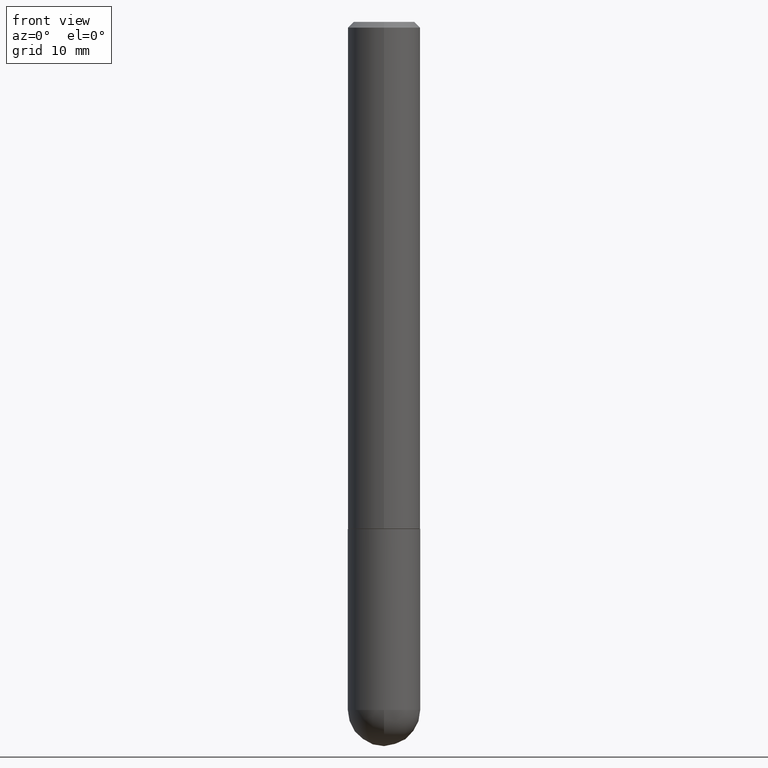
[diagram: clean part render]
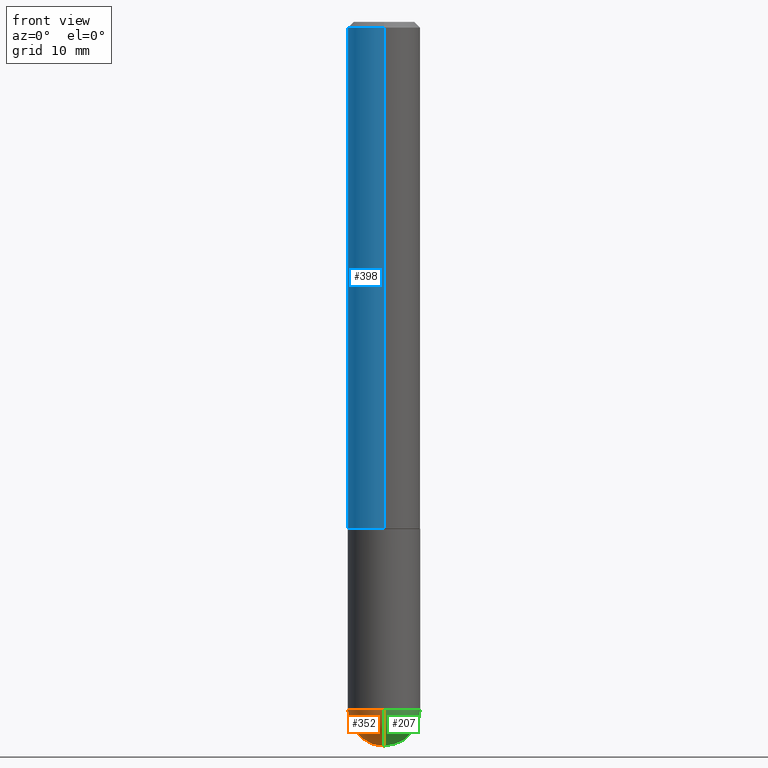
[diagram: same view with three faces highlighted in distinct colors, each labeled with its STEP entity id]
A machine part, front view with three faces highlighted in distinct colors.
Their STEP definitions:

[orange] entity #352 — the highlighted spherical surface has radius 3.175 mm.
#3 = CARTESIAN_POINT ( 'NONE',  ( 5.807988414689700538E-29, -8.292268179752471696E-15, -2.375000000000000000 ) ) ;
#7 = EDGE_CURVE ( 'NONE', #180, #252, #326, .T. ) ;
#16 = CARTESIAN_POINT ( 'NONE',  ( 5.787897026856327965E-29, -9.195231672753244292E-15, -2.500000000000000444 ) ) ;
#27 = SPHERICAL_SURFACE ( 'NONE', #355, 0.1250000000000001943 ) ;
#33 = EDGE_LOOP ( 'NONE', ( #56, #64, #270, #314 ) ) ;
#50 = CARTESIAN_POINT ( 'NONE',  ( 5.807988414689700538E-29, -8.292268179752471696E-15, -2.375000000000000000 ) ) ;
#56 = ORIENTED_EDGE ( 'NONE', *, *, #211, .F. ) ;
#60 = FACE_OUTER_BOUND ( 'NONE', #33, .T. ) ;
#62 = DIRECTION ( 'NONE',  ( -1.000000000000000000, 6.982962677686265922E-15, -4.883557194083112901E-29 ) ) ;
#63 = CIRCLE ( 'NONE', #76, 0.1250000000000001943 ) ;
#64 = ORIENTED_EDGE ( 'NONE', *, *, #167, .T. ) ;
#76 = AXIS2_PLACEMENT_3D ( 'NONE', #300, #116, #81 ) ;
#80 = DIRECTION ( 'NONE',  ( -1.000000000000000000, 7.105427357601001070E-15, -4.926315508542082329E-29 ) ) ;
#81 = DIRECTION ( 'NONE',  ( 6.982962677686265133E-15, 1.000000000000000000, 0.000000000000000000 ) ) ;
#104 = DIRECTION ( 'NONE',  ( 1.000000000000000000, -6.982962677686270655E-15, 0.000000000000000000 ) ) ;
#110 = CIRCLE ( 'NONE', #210, 0.1250000000000001943 ) ;
#116 = DIRECTION ( 'NONE',  ( 1.000000000000000000, -6.982962677686265922E-15, 4.883557194083112340E-29 ) ) ;
#132 = DIRECTION ( 'NONE',  ( -2.445468806185136597E-29, 3.491481338843145583E-15, 1.000000000000000000 ) ) ;
#139 = DIRECTION ( 'NONE',  ( 1.000000000000000000, -6.982962677686270655E-15, 0.000000000000000000 ) ) ;
#154 = DIRECTION ( 'NONE',  ( 6.982962677686265922E-15, 1.000000000000000000, -4.370956789862814839E-15 ) ) ;
#157 = VERTEX_POINT ( 'NONE', #254 ) ;
#167 = EDGE_CURVE ( 'NONE', #190, #157, #110, .T. ) ;
#172 = CARTESIAN_POINT ( 'NONE',  ( 8.728703347108403340E-16, 0.1249999999999915623, -2.375000000000000888 ) ) ;
#180 = VERTEX_POINT ( 'NONE', #172 ) ;
#184 = AXIS2_PLACEMENT_3D ( 'NONE', #3, #132, #104 ) ;
#190 = VERTEX_POINT ( 'NONE', #16 ) ;
#199 = CARTESIAN_POINT ( 'NONE',  ( 5.476868636775814291E-29, -8.766450547892521992E-15, -2.375000000000000000 ) ) ;
#200 = DIRECTION ( 'NONE',  ( -7.105427357601000281E-15, -1.000000000000000000, 0.000000000000000000 ) ) ;
#210 = AXIS2_PLACEMENT_3D ( 'NONE', #199, #80, #200 ) ;
#211 = EDGE_CURVE ( 'NONE', #190, #180, #63, .T. ) ;
#228 = EDGE_CURVE ( 'NONE', #252, #157, #281, .T. ) ;
#245 = AXIS2_PLACEMENT_3D ( 'NONE', #50, #267, #139 ) ;
#252 = VERTEX_POINT ( 'NONE', #269 ) ;
#254 = CARTESIAN_POINT ( 'NONE',  ( -8.881784197000694204E-16, -0.1250000000000086320, -2.374999999999999556 ) ) ;
#267 = DIRECTION ( 'NONE',  ( -2.445468806185136597E-29, 3.491481338843145583E-15, 1.000000000000000000 ) ) ;
#269 = CARTESIAN_POINT ( 'NONE',  ( -0.1250000000000000000, -6.313001841663864134E-15, -2.375000000000000000 ) ) ;
#270 = ORIENTED_EDGE ( 'NONE', *, *, #228, .F. ) ;
#273 = CARTESIAN_POINT ( 'NONE',  ( 5.476868636775814291E-29, -8.766450547892521992E-15, -2.375000000000000000 ) ) ;
#281 = CIRCLE ( 'NONE', #245, 0.1250000000000000000 ) ;
#300 = CARTESIAN_POINT ( 'NONE',  ( 5.476868636775814291E-29, -8.766450547892521992E-15, -2.375000000000000000 ) ) ;
#314 = ORIENTED_EDGE ( 'NONE', *, *, #7, .F. ) ;
#326 = CIRCLE ( 'NONE', #184, 0.1250000000000000000 ) ;
#352 = ADVANCED_FACE ( 'NONE', ( #60 ), #27, .T. ) ;
#355 = AXIS2_PLACEMENT_3D ( 'NONE', #273, #62, #154 ) ;

[blue] entity #398 — the highlighted cylindrical surface (edge-blend (fillet) strip) has radius 3.175 mm, axis along (-0, 0, 1).
#12 = EDGE_CURVE ( 'NONE', #319, #374, #354, .T. ) ;
#14 = AXIS2_PLACEMENT_3D ( 'NONE', #77, #150, #342 ) ;
#28 = CIRCLE ( 'NONE', #256, 0.1250000000000000000 ) ;
#32 = LINE ( 'NONE', #373, #272 ) ;
#35 = DIRECTION ( 'NONE',  ( -2.445706133332774021E-29, 3.491141472859906642E-15, 1.000000000000000000 ) ) ;
#38 = DIRECTION ( 'NONE',  ( -6.982962677686265133E-15, -1.000000000000000000, 4.370956789862812472E-15 ) ) ;
#42 = CYLINDRICAL_SURFACE ( 'NONE', #14, 0.1250000000000001110 ) ;
#47 = AXIS2_PLACEMENT_3D ( 'NONE', #224, #35, #38 ) ;
#66 = CARTESIAN_POINT ( 'NONE',  ( -8.728703347107841277E-16, -0.1250000000000001110, 4.363926841074887247E-16 ) ) ;
#77 = CARTESIAN_POINT ( 'NONE',  ( 0.000000000000000000, 0.000000000000000000, 0.000000000000000000 ) ) ;
#114 = DIRECTION ( 'NONE',  ( -6.982962677686265922E-15, -1.000000000000000000, 3.483106191921935554E-15 ) ) ;
#128 = ORIENTED_EDGE ( 'NONE', *, *, #12, .T. ) ;
#140 = FACE_OUTER_BOUND ( 'NONE', #369, .T. ) ;
#150 = DIRECTION ( 'NONE',  ( -2.445706133332774021E-29, 3.491141472859906642E-15, 1.000000000000000000 ) ) ;
#151 = ORIENTED_EDGE ( 'NONE', *, *, #372, .F. ) ;
#188 = DIRECTION ( 'NONE',  ( -2.445706133332773740E-29, 3.491141472859906642E-15, 1.000000000000000000 ) ) ;
#198 = EDGE_CURVE ( 'NONE', #321, #288, #28, .T. ) ;
#203 = CARTESIAN_POINT ( 'NONE',  ( -8.575622497214408537E-16, -0.1250000000000000555, -0.01999999999999959102 ) ) ;
#224 = CARTESIAN_POINT ( 'NONE',  ( 4.277540027199021844E-29, -6.106006436031975850E-15, -1.749000000000000110 ) ) ;
#239 = CARTESIAN_POINT ( 'NONE',  ( 4.891412266665553962E-31, -6.982282945719821124E-17, -0.02000000000000002470 ) ) ;
#242 = CARTESIAN_POINT ( 'NONE',  ( 8.881784197001479121E-16, 0.1249999999999941019, -1.749000000000000554 ) ) ;
#256 = AXIS2_PLACEMENT_3D ( 'NONE', #239, #364, #114 ) ;
#258 = VECTOR ( 'NONE', #188, 39.37007874015748143 ) ;
#259 = LINE ( 'NONE', #66, #258 ) ;
#272 = VECTOR ( 'NONE', #294, 39.37007874015748143 ) ;
#279 = ORIENTED_EDGE ( 'NONE', *, *, #198, .F. ) ;
#288 = VERTEX_POINT ( 'NONE', #203 ) ;
#294 = DIRECTION ( 'NONE',  ( -2.445706133332773740E-29, 3.491141472859906642E-15, 1.000000000000000000 ) ) ;
#319 = VERTEX_POINT ( 'NONE', #242 ) ;
#321 = VERTEX_POINT ( 'NONE', #379 ) ;
#342 = DIRECTION ( 'NONE',  ( -6.982962677686266711E-15, -1.000000000000000000, 3.491141472859906642E-15 ) ) ;
#350 = CARTESIAN_POINT ( 'NONE',  ( -8.728703347107421208E-16, -0.1250000000000063560, -1.748999999999999666 ) ) ;
#354 = CIRCLE ( 'NONE', #47, 0.1250000000000002498 ) ;
#364 = DIRECTION ( 'NONE',  ( -2.445706133332774021E-29, 3.491141472859906642E-15, 1.000000000000000000 ) ) ;
#369 = EDGE_LOOP ( 'NONE', ( #151, #128, #408, #279 ) ) ;
#372 = EDGE_CURVE ( 'NONE', #319, #321, #32, .T. ) ;
#373 = CARTESIAN_POINT ( 'NONE',  ( 8.881784197001260212E-16, 0.1250000000000001110, -4.363926841074887247E-16 ) ) ;
#374 = VERTEX_POINT ( 'NONE', #350 ) ;
#379 = CARTESIAN_POINT ( 'NONE',  ( 8.728703347107837333E-16, 0.1249999999999999306, -0.02000000000000046185 ) ) ;
#386 = EDGE_CURVE ( 'NONE', #374, #288, #259, .T. ) ;
#398 = ADVANCED_FACE ( 'NONE', ( #140 ), #42, .T. ) ;
#408 = ORIENTED_EDGE ( 'NONE', *, *, #386, .T. ) ;

[green] entity #207 — the highlighted spherical surface has radius 3.175 mm.
#16 = CARTESIAN_POINT ( 'NONE',  ( 5.787897026856327965E-29, -9.195231672753244292E-15, -2.500000000000000444 ) ) ;
#18 = DIRECTION ( 'NONE',  ( 1.000000000000000000, -6.982962677686270655E-15, 0.000000000000000000 ) ) ;
#63 = CIRCLE ( 'NONE', #76, 0.1250000000000001943 ) ;
#76 = AXIS2_PLACEMENT_3D ( 'NONE', #300, #116, #81 ) ;
#80 = DIRECTION ( 'NONE',  ( -1.000000000000000000, 7.105427357601001070E-15, -4.926315508542082329E-29 ) ) ;
#81 = DIRECTION ( 'NONE',  ( 6.982962677686265133E-15, 1.000000000000000000, 0.000000000000000000 ) ) ;
#96 = DIRECTION ( 'NONE',  ( -2.445468806185136597E-29, 3.491481338843145583E-15, 1.000000000000000000 ) ) ;
#110 = CIRCLE ( 'NONE', #210, 0.1250000000000001943 ) ;
#116 = DIRECTION ( 'NONE',  ( 1.000000000000000000, -6.982962677686265922E-15, 4.883557194083112340E-29 ) ) ;
#136 = DIRECTION ( 'NONE',  ( -1.000000000000000000, 6.982962677686265922E-15, -4.883557194083112901E-29 ) ) ;
#141 = SPHERICAL_SURFACE ( 'NONE', #315, 0.1250000000000001943 ) ;
#143 = CARTESIAN_POINT ( 'NONE',  ( 5.476868636775814291E-29, -8.766450547892521992E-15, -2.375000000000000000 ) ) ;
#145 = CIRCLE ( 'NONE', #202, 0.1250000000000000000 ) ;
#157 = VERTEX_POINT ( 'NONE', #254 ) ;
#167 = EDGE_CURVE ( 'NONE', #190, #157, #110, .T. ) ;
#172 = CARTESIAN_POINT ( 'NONE',  ( 8.728703347108403340E-16, 0.1249999999999915623, -2.375000000000000888 ) ) ;
#180 = VERTEX_POINT ( 'NONE', #172 ) ;
#190 = VERTEX_POINT ( 'NONE', #16 ) ;
#199 = CARTESIAN_POINT ( 'NONE',  ( 5.476868636775814291E-29, -8.766450547892521992E-15, -2.375000000000000000 ) ) ;
#200 = DIRECTION ( 'NONE',  ( -7.105427357601000281E-15, -1.000000000000000000, 0.000000000000000000 ) ) ;
#202 = AXIS2_PLACEMENT_3D ( 'NONE', #313, #96, #343 ) ;
#207 = ADVANCED_FACE ( 'NONE', ( #229 ), #141, .T. ) ;
#210 = AXIS2_PLACEMENT_3D ( 'NONE', #199, #80, #200 ) ;
#211 = EDGE_CURVE ( 'NONE', #190, #180, #63, .T. ) ;
#217 = CIRCLE ( 'NONE', #265, 0.1250000000000000000 ) ;
#218 = CARTESIAN_POINT ( 'NONE',  ( 0.1250000000000000000, -8.074050596074771916E-15, -2.375000000000000000 ) ) ;
#229 = FACE_OUTER_BOUND ( 'NONE', #333, .T. ) ;
#231 = EDGE_CURVE ( 'NONE', #157, #341, #217, .T. ) ;
#254 = CARTESIAN_POINT ( 'NONE',  ( -8.881784197000694204E-16, -0.1250000000000086320, -2.374999999999999556 ) ) ;
#263 = CARTESIAN_POINT ( 'NONE',  ( 5.807988414689700538E-29, -8.292268179752471696E-15, -2.375000000000000000 ) ) ;
#265 = AXIS2_PLACEMENT_3D ( 'NONE', #263, #331, #18 ) ;
#286 = ORIENTED_EDGE ( 'NONE', *, *, #231, .F. ) ;
#300 = CARTESIAN_POINT ( 'NONE',  ( 5.476868636775814291E-29, -8.766450547892521992E-15, -2.375000000000000000 ) ) ;
#313 = CARTESIAN_POINT ( 'NONE',  ( 5.807988414689700538E-29, -8.292268179752471696E-15, -2.375000000000000000 ) ) ;
#315 = AXIS2_PLACEMENT_3D ( 'NONE', #143, #136, #330 ) ;
#324 = EDGE_CURVE ( 'NONE', #341, #180, #145, .T. ) ;
#330 = DIRECTION ( 'NONE',  ( 6.982962677686265922E-15, 1.000000000000000000, -4.370956789862814839E-15 ) ) ;
#331 = DIRECTION ( 'NONE',  ( -2.445468806185136597E-29, 3.491481338843145583E-15, 1.000000000000000000 ) ) ;
#333 = EDGE_LOOP ( 'NONE', ( #338, #388, #377, #286 ) ) ;
#338 = ORIENTED_EDGE ( 'NONE', *, *, #167, .F. ) ;
#341 = VERTEX_POINT ( 'NONE', #218 ) ;
#343 = DIRECTION ( 'NONE',  ( 1.000000000000000000, -6.982962677686270655E-15, 0.000000000000000000 ) ) ;
#377 = ORIENTED_EDGE ( 'NONE', *, *, #324, .F. ) ;
#388 = ORIENTED_EDGE ( 'NONE', *, *, #211, .T. ) ;